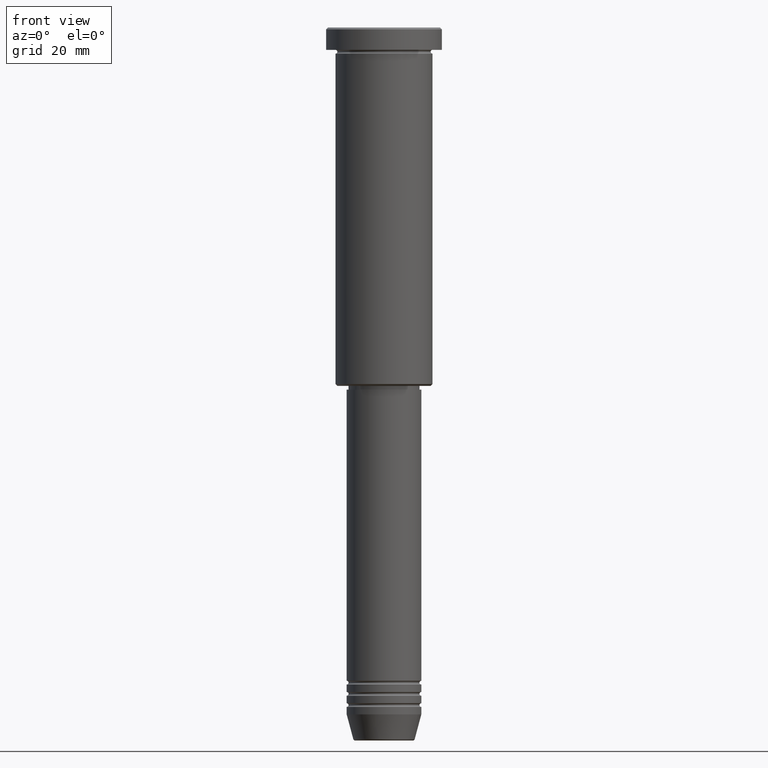
[diagram: clean part render]
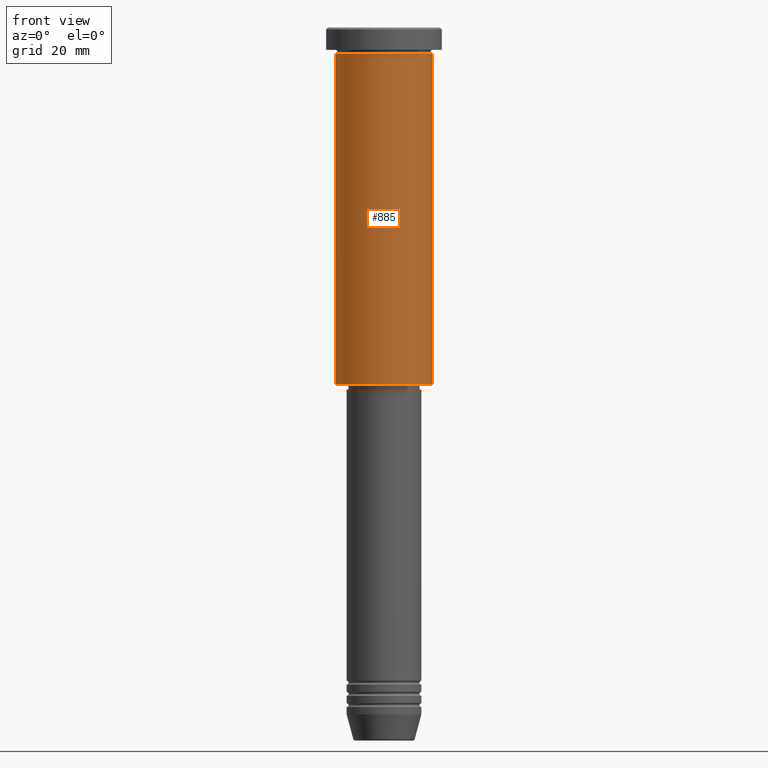
[diagram: same view with one face highlighted and labeled with its STEP entity id]
A machine part, front view. The second image highlights one B-rep face of the part: STEP entity #885.
In plain terms, the highlighted cylindrical surface (partial cylindrical patch) has radius 13 mm, axis along (-0, -0, 1).
Its self-contained STEP definition (entity closure, byte-faithful):
#2 = CARTESIAN_POINT ( 'NONE',  ( 13.00000000000000000, 0.000000000000000000, -95.50000000000007105 ) ) ;
#10 = DIRECTION ( 'NONE',  ( -0.000000000000000000, -0.000000000000000000, 1.000000000000000000 ) ) ;
#22 = VERTEX_POINT ( 'NONE', #971 ) ;
#80 = CYLINDRICAL_SURFACE ( 'NONE', #577, 13.00000000000000000 ) ;
#87 = CARTESIAN_POINT ( 'NONE',  ( 13.00000000000000000, 0.000000000000000000, 0.000000000000000000 ) ) ;
#98 = EDGE_CURVE ( 'NONE', #1119, #477, #851, .T. ) ;
#110 = ORIENTED_EDGE ( 'NONE', *, *, #250, .F. ) ;
#131 = VERTEX_POINT ( 'NONE', #991 ) ;
#170 = LINE ( 'NONE', #87, #772 ) ;
#186 = VECTOR ( 'NONE', #10, 1000.000000000000000 ) ;
#194 = FACE_OUTER_BOUND ( 'NONE', #315, .T. ) ;
#250 = EDGE_CURVE ( 'NONE', #131, #22, #349, .T. ) ;
#286 = DIRECTION ( 'NONE',  ( 1.000000000000000000, 0.000000000000000000, 0.000000000000000000 ) ) ;
#315 = EDGE_LOOP ( 'NONE', ( #1162, #483, #582, #110 ) ) ;
#329 = CARTESIAN_POINT ( 'NONE',  ( 0.000000000000000000, 0.000000000000000000, -95.50000000000007105 ) ) ;
#349 = CIRCLE ( 'NONE', #1019, 13.00000000000000000 ) ;
#477 = VERTEX_POINT ( 'NONE', #2 ) ;
#483 = ORIENTED_EDGE ( 'NONE', *, *, #98, .T. ) ;
#501 = EDGE_CURVE ( 'NONE', #1119, #131, #729, .T. ) ;
#577 = AXIS2_PLACEMENT_3D ( 'NONE', #1105, #1176, #898 ) ;
#582 = ORIENTED_EDGE ( 'NONE', *, *, #869, .T. ) ;
#606 = DIRECTION ( 'NONE',  ( -1.000000000000000000, 0.000000000000000000, 0.000000000000000000 ) ) ;
#617 = DIRECTION ( 'NONE',  ( -0.000000000000000000, -0.000000000000000000, 1.000000000000000000 ) ) ;
#702 = DIRECTION ( 'NONE',  ( -0.000000000000000000, -0.000000000000000000, 1.000000000000000000 ) ) ;
#729 = LINE ( 'NONE', #748, #186 ) ;
#748 = CARTESIAN_POINT ( 'NONE',  ( -13.00000000000000000, 1.592040838891559095E-15, 0.000000000000000000 ) ) ;
#772 = VECTOR ( 'NONE', #1088, 1000.000000000000000 ) ;
#777 = CARTESIAN_POINT ( 'NONE',  ( -13.00000000000000000, 1.592040838891559095E-15, -95.50000000000007105 ) ) ;
#851 = CIRCLE ( 'NONE', #1058, 13.00000000000000000 ) ;
#869 = EDGE_CURVE ( 'NONE', #477, #22, #170, .T. ) ;
#885 = ADVANCED_FACE ( 'NONE', ( #194 ), #80, .T. ) ;
#898 = DIRECTION ( 'NONE',  ( 1.000000000000000000, 0.000000000000000000, 0.000000000000000000 ) ) ;
#971 = CARTESIAN_POINT ( 'NONE',  ( 13.00000000000000000, 0.000000000000000000, -6.999999999999995559 ) ) ;
#991 = CARTESIAN_POINT ( 'NONE',  ( -13.00000000000000000, 1.592040838891559095E-15, -6.999999999999995559 ) ) ;
#1019 = AXIS2_PLACEMENT_3D ( 'NONE', #1072, #617, #286 ) ;
#1058 = AXIS2_PLACEMENT_3D ( 'NONE', #329, #702, #606 ) ;
#1072 = CARTESIAN_POINT ( 'NONE',  ( 0.000000000000000000, 0.000000000000000000, -6.999999999999995559 ) ) ;
#1088 = DIRECTION ( 'NONE',  ( -0.000000000000000000, -0.000000000000000000, 1.000000000000000000 ) ) ;
#1105 = CARTESIAN_POINT ( 'NONE',  ( 0.000000000000000000, 0.000000000000000000, 0.000000000000000000 ) ) ;
#1119 = VERTEX_POINT ( 'NONE', #777 ) ;
#1162 = ORIENTED_EDGE ( 'NONE', *, *, #501, .F. ) ;
#1176 = DIRECTION ( 'NONE',  ( -0.000000000000000000, -0.000000000000000000, 1.000000000000000000 ) ) ;